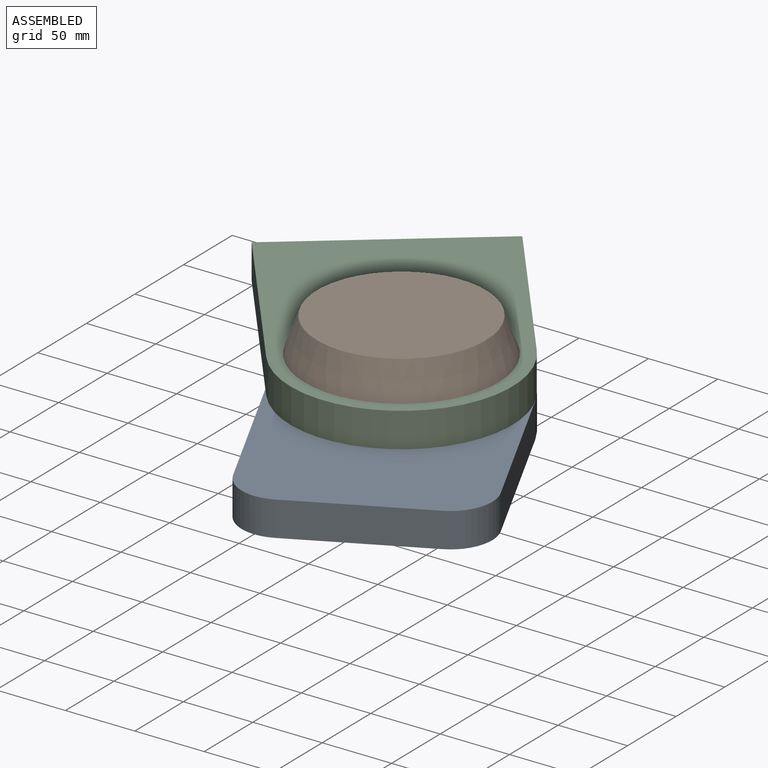
[diagram: assembled view]
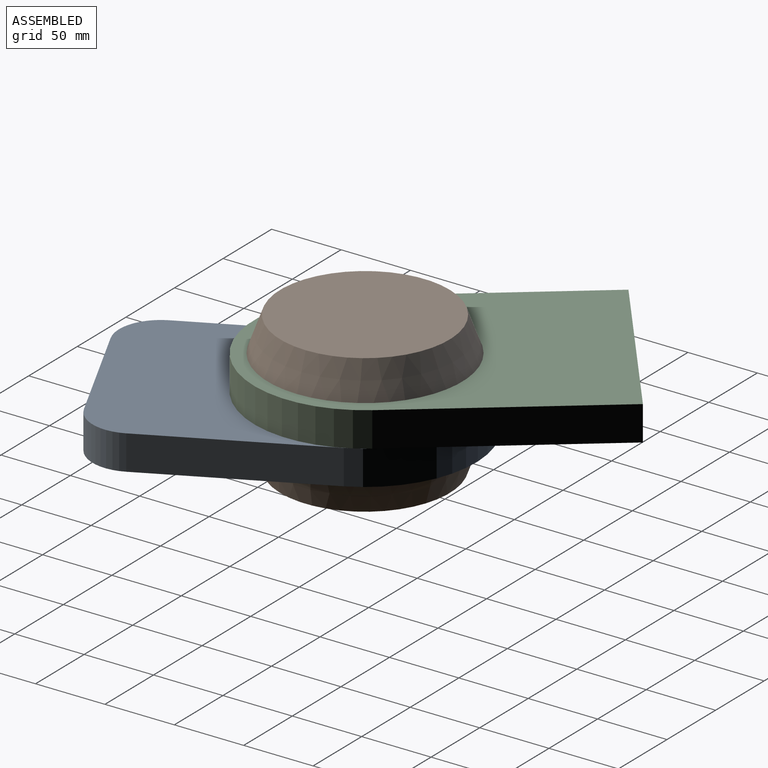
[diagram: assembled view, second angle]
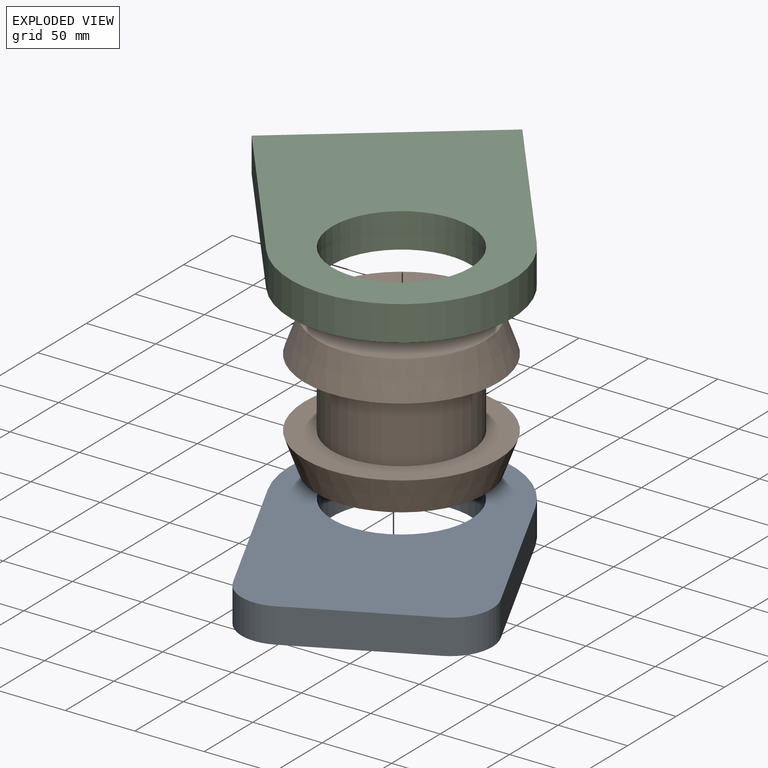
[diagram: exploded view]
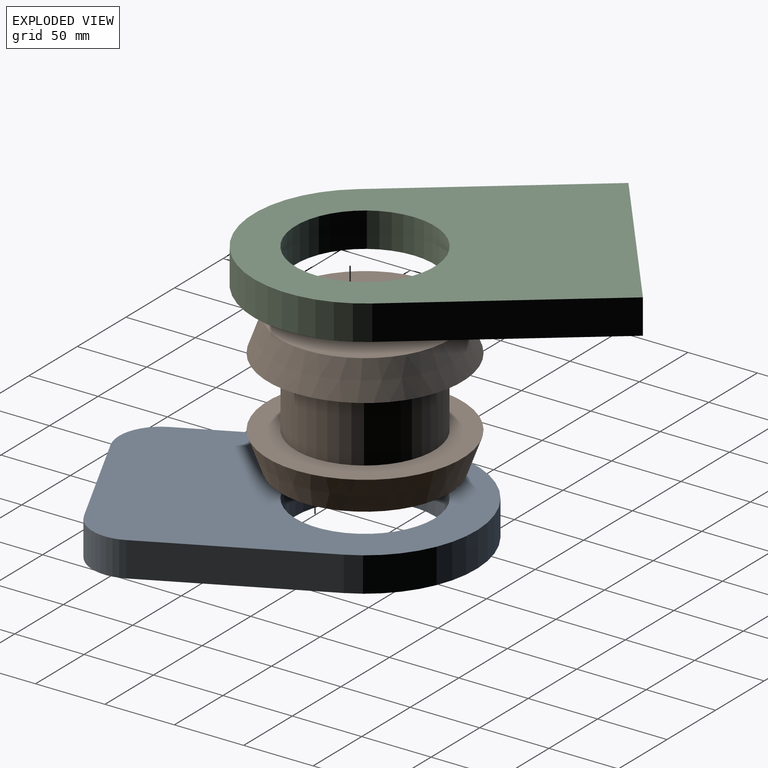
[diagram: exploded view, second angle]
ASSEMBLY  parts=3 mates=2
PART A: 9 faces, bbox 240x160x25 mm
  f0: cylinder r=30mm len=30mm, axis (0,0,-1), area 1178.1mm2, adj f1,f6,f7,f8
  f1: plane 100x25mm, normal (1,0,0), area 2500mm2, adj f0,f2,f7,f8
  f2: cylinder r=30mm len=30mm, axis (0,0,-1), area 1178.1mm2, adj f1,f3,f7,f8
  f3: plane 130x25mm, normal (0,1,0), area 3250mm2, adj f2,f4,f7,f8
  f4: cylinder r=80mm len=160mm, axis (0,0,-1), area 6283.2mm2, adj f3,f6,f7,f8
  f5: cylinder r=50mm len=100mm, axis (0,0,-1), area 7854mm2, adj f7,f8
  f6: plane 130x25mm, normal (0,-1,0), area 3250mm2, adj f0,f4,f7,f8
  f7: plane 240x160mm, normal (0,0,1), area 27412.8mm2, adj f0,f1,f2,f3,f4,f5,f6
  f8: plane 240x160mm, normal (0,0,-1), area 27412.8mm2, adj f0,f1,f2,f3,f4,f5,f6
PART B: 7 faces, bbox 140x140x100 mm
  f0: cylinder r=50mm len=100mm, axis (0,0,-1), area 15708mm2, adj f3,f6
  f1: cone r=70mm half-angle=20deg, axis (0,0,-1), area 10940.7mm2, adj f2,f3
  f2: plane 121.8x121.8mm, normal (0,0,1), area 11651.9mm2, adj f1
  f3: plane 140x140mm, normal (0,0,-1), area 7539.8mm2, adj f0,f1
  f4: cone r=70mm half-angle=20deg, axis (0,0,1), area 10940.7mm2, adj f5,f6
  f5: plane 121.8x121.8mm, normal (0,0,-1), area 11651.9mm2, adj f4
  f6: plane 140x140mm, normal (0,0,1), area 7539.8mm2, adj f0,f4
PART C: 7 faces, bbox 240x160x25 mm
  f0: plane 160x25mm, normal (0,-1,0), area 4000mm2, adj f1,f4,f5,f6
  f1: plane 160x25mm, normal (1,0,0), area 4000mm2, adj f0,f2,f5,f6
  f2: plane 160x25mm, normal (0,1,0), area 4000mm2, adj f1,f4,f5,f6
  f3: cylinder r=50mm len=100mm, axis (0,0,-1), area 7854mm2, adj f5,f6
  f4: cylinder r=80mm len=160mm, axis (0,0,-1), area 6283.2mm2, adj f0,f2,f5,f6
  f5: plane 240x160mm, normal (0,0,1), area 27799.1mm2, adj f0,f1,f2,f3,f4
  f6: plane 240x160mm, normal (0,0,-1), area 27799.1mm2, adj f0,f1,f2,f3,f4
PLACE A rot(axis=(0,0,-1),64deg) t=(-17.84,-0.1,-25.49)mm
PLACE B t=(-17.84,-0.1,-0.49)mm fixed
PLACE C rot(axis=(0,0,1),128.1deg) t=(-17.84,-0.1,-0.49)mm
MATE revolute A.f4 <-> B.f0  axis (0,0,-1) through (-17.84,-0.1,-25.49)mm
MATE revolute C.f3 <-> B.f0  axis (0,0,-1) through (-17.84,-0.1,24.51)mm
